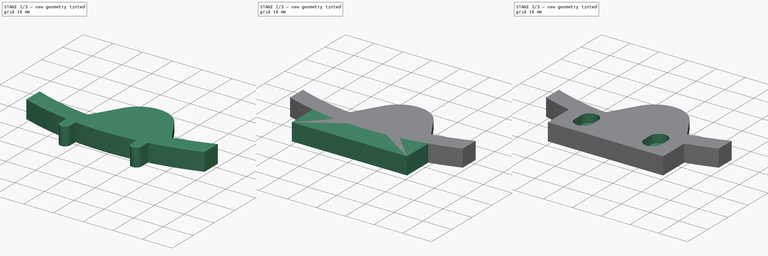
[diagram: build sequence overview — one tinted view per stage of 3, left to right]
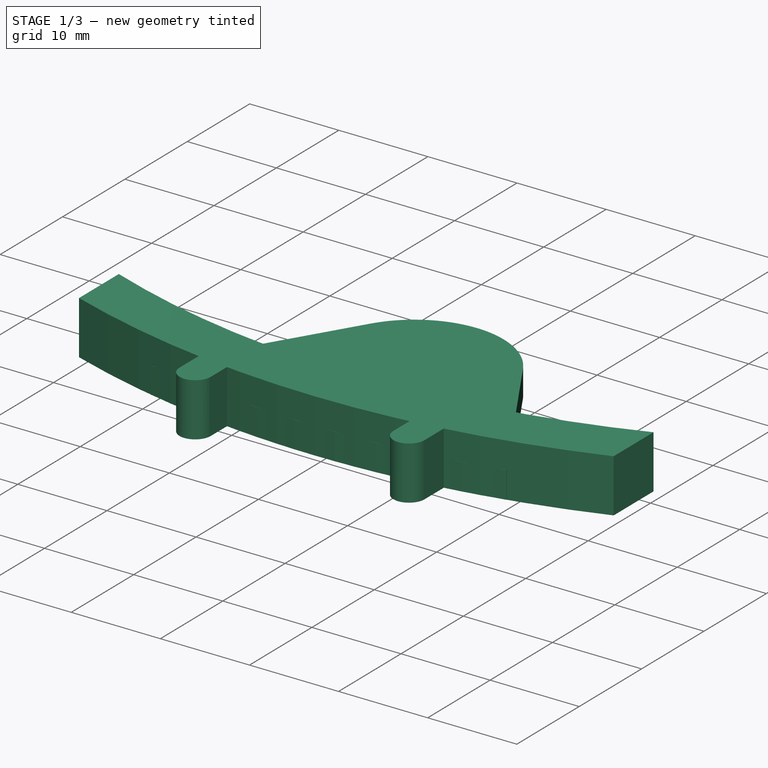
[diagram: stage 1 of 3 — iso view after this stage's code; geometry added in this stage tinted green]
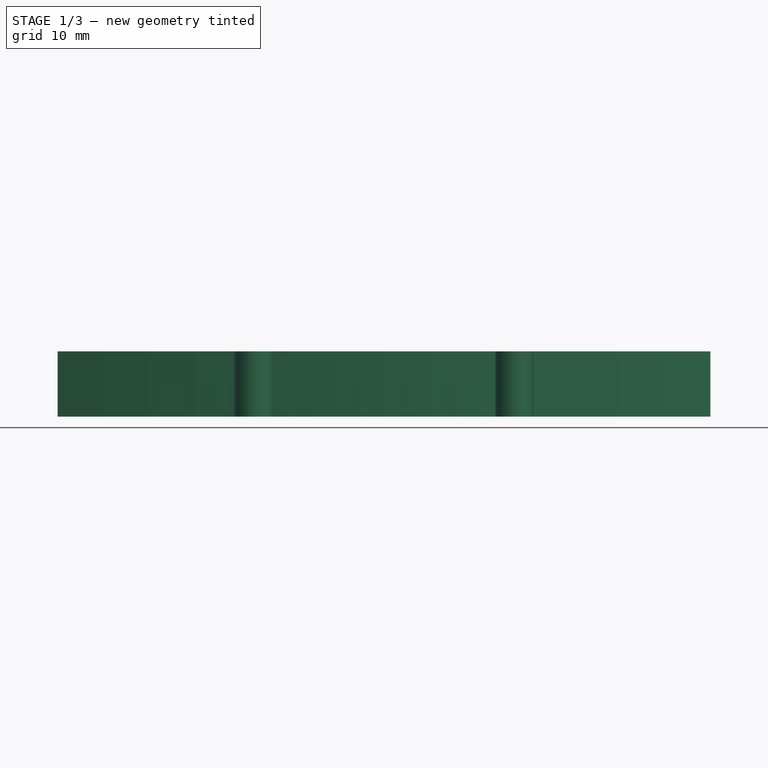
[diagram: stage 1 of 3 — front view after this stage's code; geometry added in this stage tinted green]
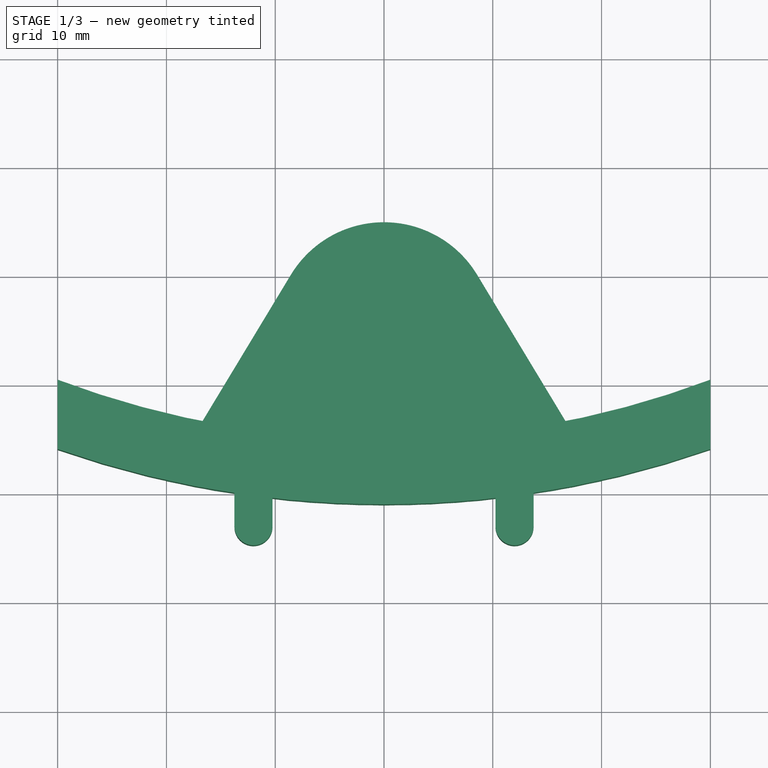
[diagram: stage 1 of 3 — top view after this stage's code; geometry added in this stage tinted green]
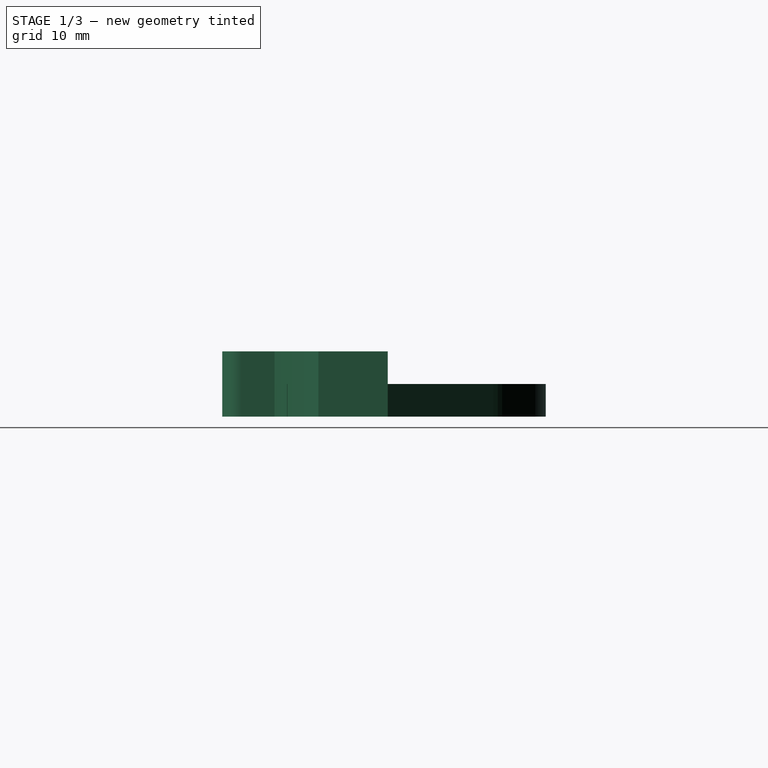
[diagram: stage 1 of 3 — right view after this stage's code; geometry added in this stage tinted green]
FCSTD DOCUMENT  (FreeCAD 0.14R2935 (Git))
Label: FSR_Mount_V1
License: CC-BY 3.0
LicenseURL: http://creativecommons.org/licenses/by/3.0/
objects: Sketcher::SketchObject×5, PartDesign::Pad×5, App::DocumentObjectGroup×2, Part::Cut×2, Part::MultiFuse×1
note: 18 computed .brp shape members not serialized (recipe doc carries the construction recipe); baked Part::Feature solids carry a one-line shape summary decoded from their .brp

FEATURE [PartDesign::Pad] Pad002  label="Frame_Pad"
  Length = 6
  Length2 = 100
  Sketch = -> Sketch002
  Type = 0
FEATURE [PartDesign::Pad] Pad003  label="Base_Pad"
  Length = 3
  Length2 = 100
  Sketch = -> Sketch001
  Type = 0
FEATURE [PartDesign::Pad] Pad  label="ThroughHole_Pad"
  Length = 6
  Length2 = 100
  Sketch = -> Sketch003
  Type = 0
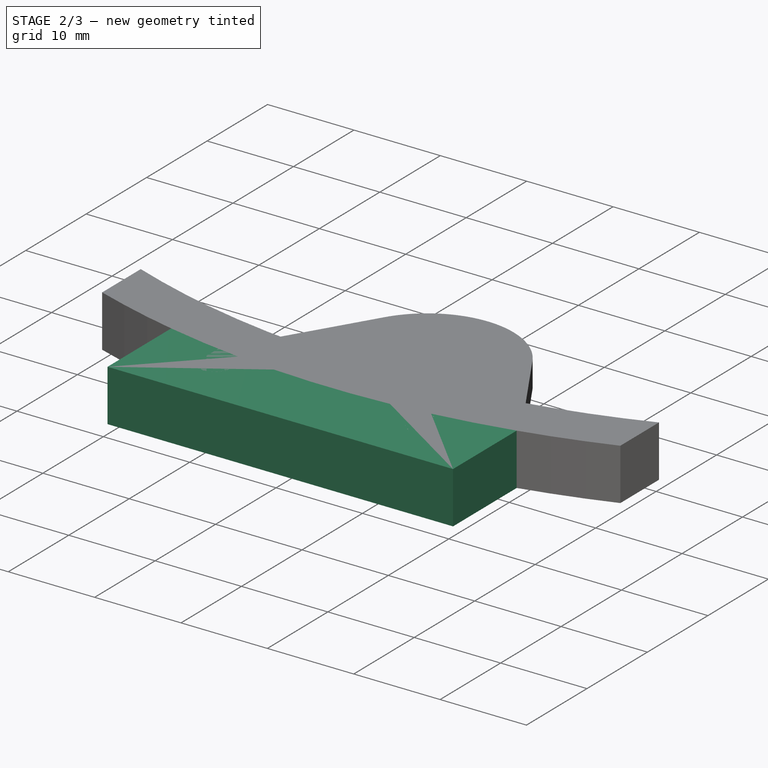
[diagram: stage 2 of 3 — iso view after this stage's code; geometry added in this stage tinted green]
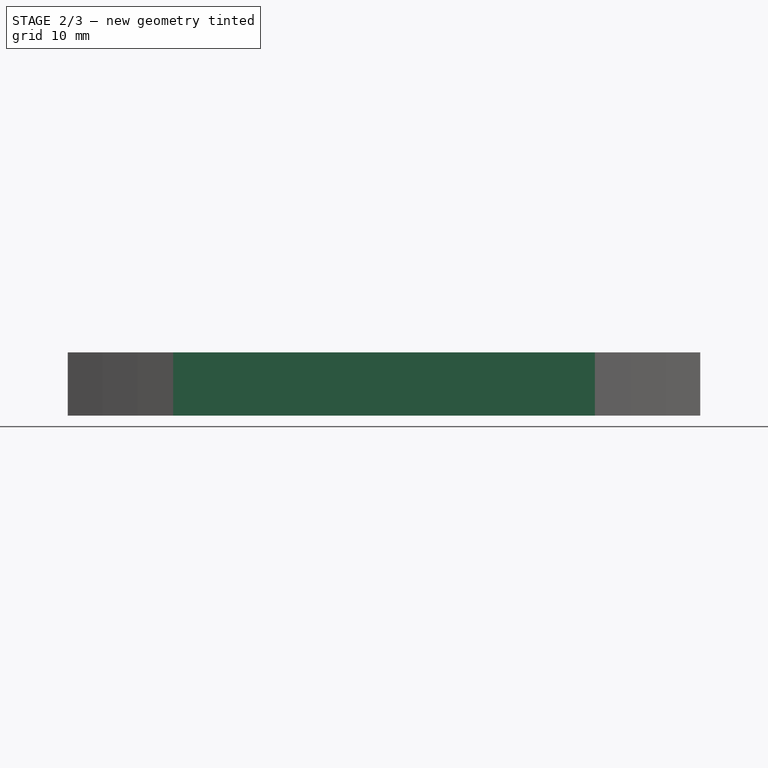
[diagram: stage 2 of 3 — front view after this stage's code; geometry added in this stage tinted green]
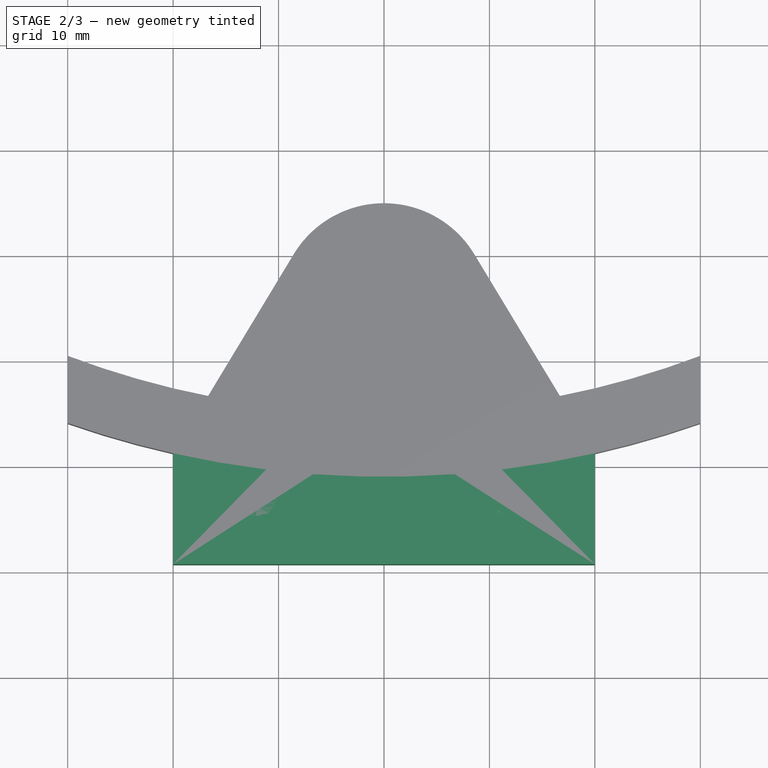
[diagram: stage 2 of 3 — top view after this stage's code; geometry added in this stage tinted green]
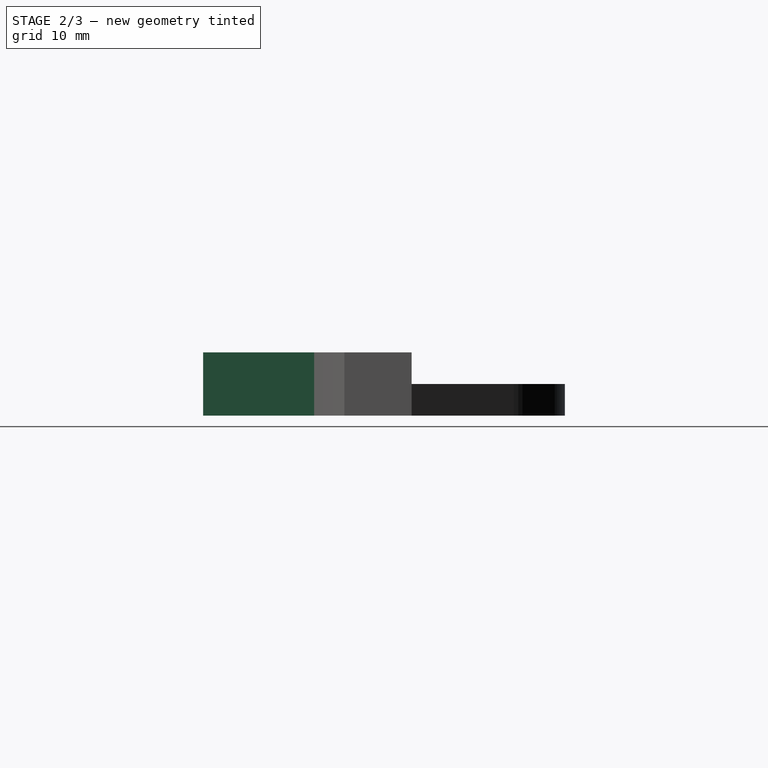
[diagram: stage 2 of 3 — right view after this stage's code; geometry added in this stage tinted green]
FEATURE [Sketcher::SketchObject] Sketch  label="Back_Sketch"
  sketch-geometry (4):
    g0: ArcOfCircle CenterX=0 CenterY=0 CenterZ=0 NormalX=0 NormalY=0 NormalZ=1 Radius=85 StartAngle=4.47487 EndAngle=4.94991
    g1: LineSegment StartX=20 StartY=-82.6136 StartZ=0 EndX=20 EndY=-99.3 EndZ=0
    g2: LineSegment StartX=20 StartY=-99.3 StartZ=0 EndX=-20 EndY=-99.3 EndZ=0
    g3: LineSegment StartX=-20 StartY=-99.3 StartZ=0 EndX=-20 EndY=-82.6136 EndZ=0
  constraints (11):
    c: Coincident(g0,g-1)
    c: Radius(g0) = 85
    c: Coincident(g1,g2)
    c: Coincident(g2,g3)
    c: Coincident(g3,g0)
    c: Coincident(g1,g0)
    c: Distance(g3) = 16.6864
    c: DistanceX(g-1,g2) = -20
    c: Symmetric(g2,g1,g-2)
    c: Perpendicular(g3,g2)
    c: Perpendicular(g1,g2)
FEATURE [Sketcher::SketchObject] Sketch001  label="Base_Sketch"
  sketch-geometry (4):
    g0: ArcOfCircle CenterX=0 CenterY=-75 CenterZ=0 NormalX=0 NormalY=0 NormalZ=1 Radius=10 StartAngle=0.543251 EndAngle=2.59834
    g1: LineSegment StartX=-20 StartY=-88.775 StartZ=0 EndX=-8.56032 EndY=-69.8308 EndZ=0
    g2: LineSegment StartX=8.56032 StartY=-69.8308 StartZ=0 EndX=20 EndY=-88.775 EndZ=0
    g3: ArcOfCircle CenterX=0 CenterY=0 CenterZ=0 NormalX=0 NormalY=0 NormalZ=1 Radius=91 StartAngle=4.4908 EndAngle=4.93398
  constraints (12):
    c: Radius(g0) = 10
    c: Symmetric(g0,g0,g-2)
    c: Coincident(g1,g0)
    c: Symmetric(g2,g1,g-2)
    c: Coincident(g2,g0)
    c: DistanceY(g-1,g0) = -75
    c: Tangent(g1,g0)
    c: Coincident(g3,g-1)
    c: Coincident(g3,g1)
    c: Coincident(g3,g2)
    c: DistanceX(g1,g2) = 40
    c: Radius(g3) = 91
FEATURE [Sketcher::SketchObject] Sketch002  label="Frame_Sketch"
  sketch-geometry (4):
    g0: ArcOfCircle CenterX=0 CenterY=0 CenterZ=0 NormalX=0 NormalY=0 NormalZ=1 Radius=85 StartAngle=4.35168 EndAngle=5.0731
    g1: ArcOfCircle CenterX=0 CenterY=0 CenterZ=0 NormalX=0 NormalY=0 NormalZ=1 Radius=91 StartAngle=4.37643 EndAngle=5.04834
    g2: LineSegment StartX=30 StartY=-79.5299 StartZ=0 EndX=30 EndY=-85.9127 EndZ=0
    g3: LineSegment StartX=-30 StartY=-85.9127 StartZ=0 EndX=-30 EndY=-79.5299 EndZ=0
  constraints (12):
    c: Coincident(g0,g-1)
    c: Coincident(g1,g-1)
    c: Radius(g0) = 85
    c: Vertical(g2)
    c: Vertical(g3)
    c: Radius(g1) = 91
    c: Coincident(g3,g0)
    c: Coincident(g2,g0)
    c: Coincident(g2,g1)
    c: Coincident(g3,g1)
    c: DistanceX(g-1,g0) = -30
    c: Symmetric(g0,g0,g-2)
FEATURE [Sketcher::SketchObject] Sketch003  label="ThroughHole_Sketch"
  sketch-geometry (8):
    g0: ArcOfCircle CenterX=-12 CenterY=-90 CenterZ=0 NormalX=0 NormalY=0 NormalZ=1 Radius=1.75 StartAngle=6.28319 EndAngle=9.42478
    g1: ArcOfCircle CenterX=-12 CenterY=-93 CenterZ=0 NormalX=0 NormalY=0 NormalZ=1 Radius=1.75 StartAngle=3.14159 EndAngle=6.28319
    g2: LineSegment StartX=-10.25 StartY=-90 StartZ=0 EndX=-10.25 EndY=-93 EndZ=0
    g3: LineSegment StartX=-13.75 StartY=-90 StartZ=0 EndX=-13.75 EndY=-93 EndZ=0
    g4: ArcOfCircle CenterX=12 CenterY=-90 CenterZ=0 NormalX=0 NormalY=0 NormalZ=1 Radius=1.75 StartAngle=6.28318 EndAngle=9.42478
    g5: ArcOfCircle CenterX=12 CenterY=-93 CenterZ=0 NormalX=0 NormalY=0 NormalZ=1 Radius=1.75 StartAngle=3.14159 EndAngle=6.28319
    g6: LineSegment StartX=10.25 StartY=-90 StartZ=0 EndX=10.25 EndY=-93 EndZ=0
    g7: LineSegment StartX=13.75 StartY=-90 StartZ=0 EndX=13.75 EndY=-93 EndZ=0
  constraints (24):
    c: Radius(g0) = 1.75
    c: DistanceX(g-1,g0) = -12
    c: DistanceY(g-1,g0) = -90
    c: Coincident(g2,g1)
    c: Coincident(g2,g0)
    c: Tangent(g2,g0)
    c: Tangent(g2,g1)
    c: Vertical(g2)
    c: Coincident(g3,g0)
    c: Coincident(g3,g1)
    c: Tangent(g3,g0)
    c: Tangent(g3,g1)
    c: Vertical(g3)
    c: DistanceY(g1,g0) = 3
    c: Symmetric(g4,g0,g-2)
    c: Symmetric(g4,g0,g-2)
    c: Symmetric(g4,g0,g-2)
    c: Symmetric(g5,g1,g-2)
    c: Symmetric(g5,g1,g-2)
    c: Symmetric(g5,g1,g-2)
    c: Coincident(g6,g4)
    c: Coincident(g6,g5)
    c: Coincident(g7,g4)
    c: Coincident(g7,g5)
FEATURE [PartDesign::Pad] Pad001  label="Back_Pad"
  Length = 6
  Length2 = 100
  Sketch = -> Sketch
  Type = 0
FEATURE [Sketcher::SketchObject] Sketch004  label="CounterboreHole_Sketch"
  Placement = pos=(0,0,3) rot=(0,0,1;0rad)
  sketch-geometry (8):
    g0: ArcOfCircle CenterX=-12 CenterY=-93 CenterZ=0 NormalX=0 NormalY=0 NormalZ=1 Radius=3 StartAngle=3.1416 EndAngle=6.28319
    g1: ArcOfCircle CenterX=-12 CenterY=-90 CenterZ=0 NormalX=0 NormalY=0 NormalZ=1 Radius=3 StartAngle=6.28319 EndAngle=9.42478
    g2: LineSegment StartX=-9 StartY=-90 StartZ=0 EndX=-9 EndY=-93 EndZ=0
    g3: LineSegment StartX=-15 StartY=-90 StartZ=0 EndX=-15 EndY=-93 EndZ=0
    g4: ArcOfCircle CenterX=12 CenterY=-90 CenterZ=0 NormalX=0 NormalY=0 NormalZ=1 Radius=3 StartAngle=6.28319 EndAngle=9.42478
    g5: ArcOfCircle CenterX=12 CenterY=-93 CenterZ=0 NormalX=0 NormalY=0 NormalZ=1 Radius=3 StartAngle=3.14159 EndAngle=6.28318
    g6: LineSegment StartX=9 StartY=-90 StartZ=0 EndX=9 EndY=-93 EndZ=0
    g7: LineSegment StartX=15 StartY=-90 StartZ=0 EndX=15 EndY=-93 EndZ=0
  constraints (24):
    c: DistanceX(g-1,g1) = -12
    c: DistanceY(g-1,g1) = -90
    c: DistanceY(g0,g1) = 3
    c: Radius(g1) = 3
    c: Coincident(g2,g0)
    c: Coincident(g1,g2)
    c: Tangent(g2,g1)
    c: Tangent(g2,g0)
    c: Coincident(g3,g1)
    c: Coincident(g3,g0)
    c: Tangent(g3,g1)
    c: Tangent(g3,g0)
    c: Vertical(g3)
    c: Vertical(g2)
    c: Symmetric(g4,g1,g-2)
    c: Symmetric(g4,g1,g-2)
    c: Symmetric(g1,g4,g-2)
    c: Symmetric(g5,g0,g-2)
    c: Symmetric(g5,g0,g-2)
    c: Coincident(g6,g4)
    c: Coincident(g6,g5)
    c: Coincident(g7,g4)
    c: Coincident(g7,g5)
    c: Symmetric(g0,g5,g-2)
FEATURE [App::DocumentObjectGroup] Group  label="Solids"
  Group = -> [Pad001,Pad002,Pad003]
FEATURE [Part::MultiFuse] Fusion  label="Solids_Fusion"
  Shapes = -> [Pad001,Pad002,Pad003]
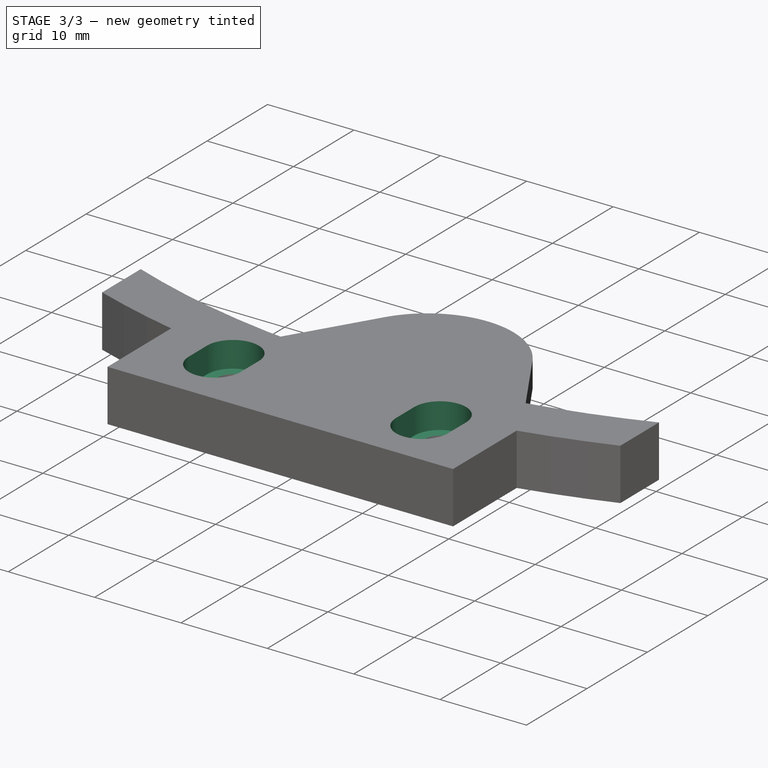
[diagram: stage 3 of 3 — iso view after this stage's code; geometry added in this stage tinted green]
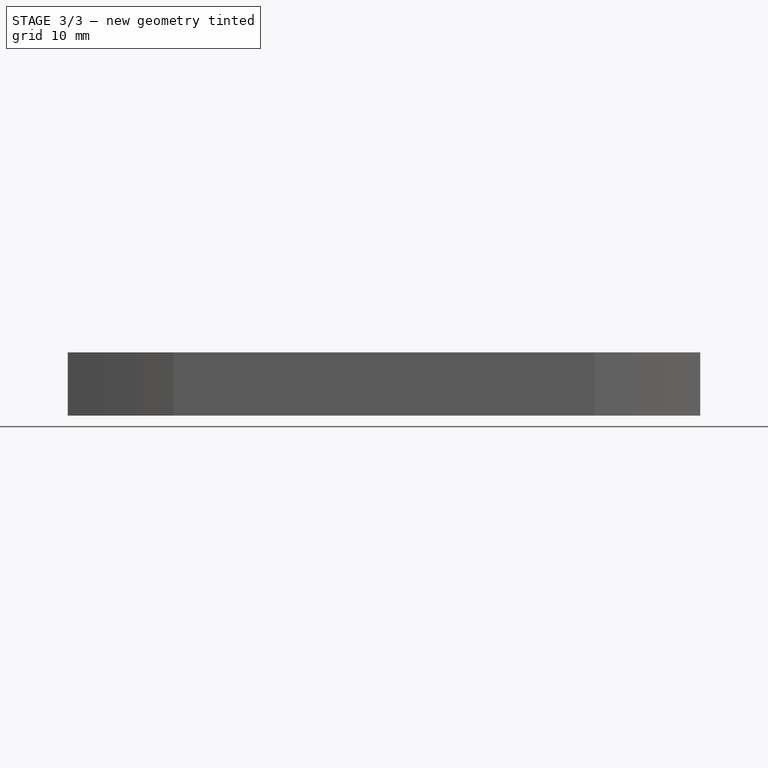
[diagram: stage 3 of 3 — front view after this stage's code; geometry added in this stage tinted green]
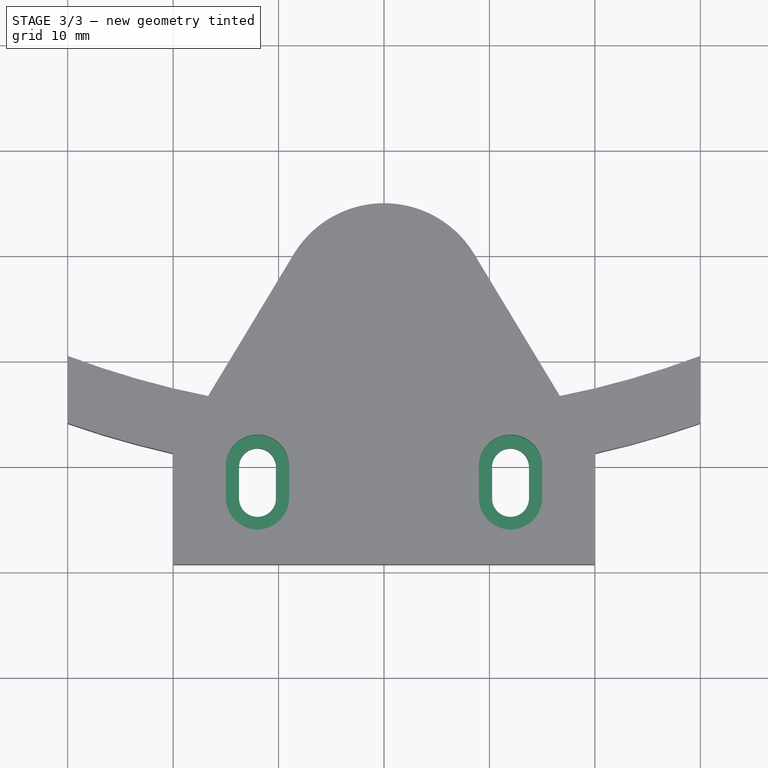
[diagram: stage 3 of 3 — top view after this stage's code; geometry added in this stage tinted green]
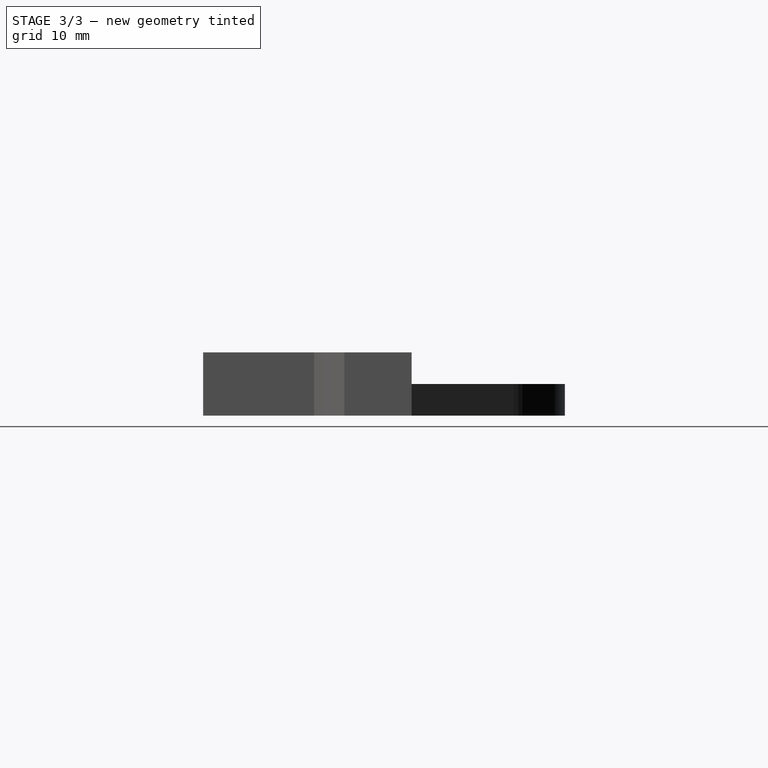
[diagram: stage 3 of 3 — right view after this stage's code; geometry added in this stage tinted green]
FEATURE [PartDesign::Pad] Pad004  label="CounterboreHole_Pad"
  Length = 3
  Length2 = 100
  Placement = pos=(0,0,3) rot=(0,0,1;0rad)
  Sketch = -> Sketch004
  Type = 0
FEATURE [App::DocumentObjectGroup] Group001  label="Holes"
  Group = -> [Pad,Pad004]
FEATURE [Part::Cut] Cut  label="ThroughHole_Cut"
  Base = -> Fusion
  Tool = -> Pad
FEATURE [Part::Cut] Cut001  label="CounterboreHole_Cut"
  Base = -> Cut
  Tool = -> Pad004
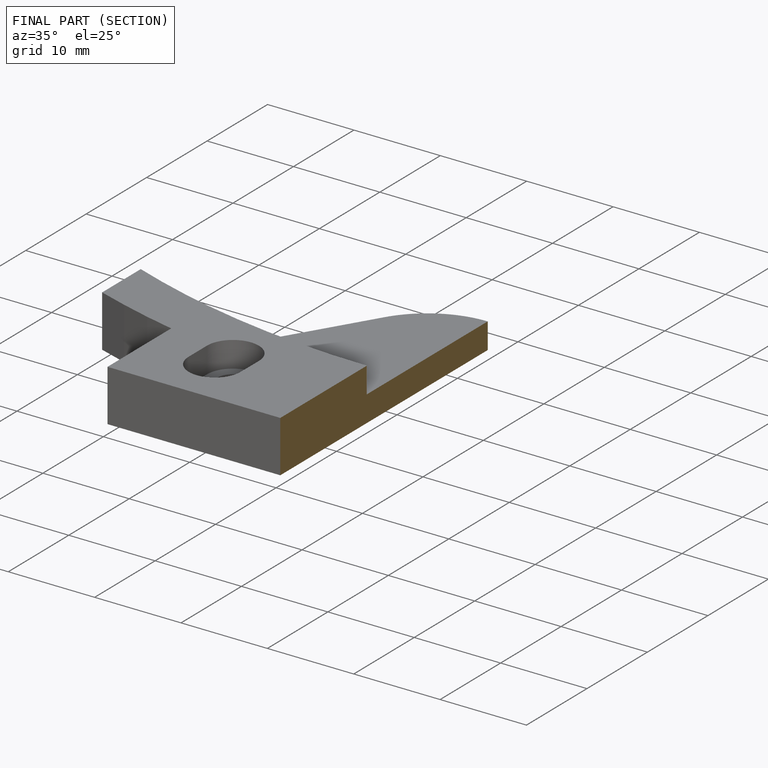
[diagram: finished part — half-section view (interior)]
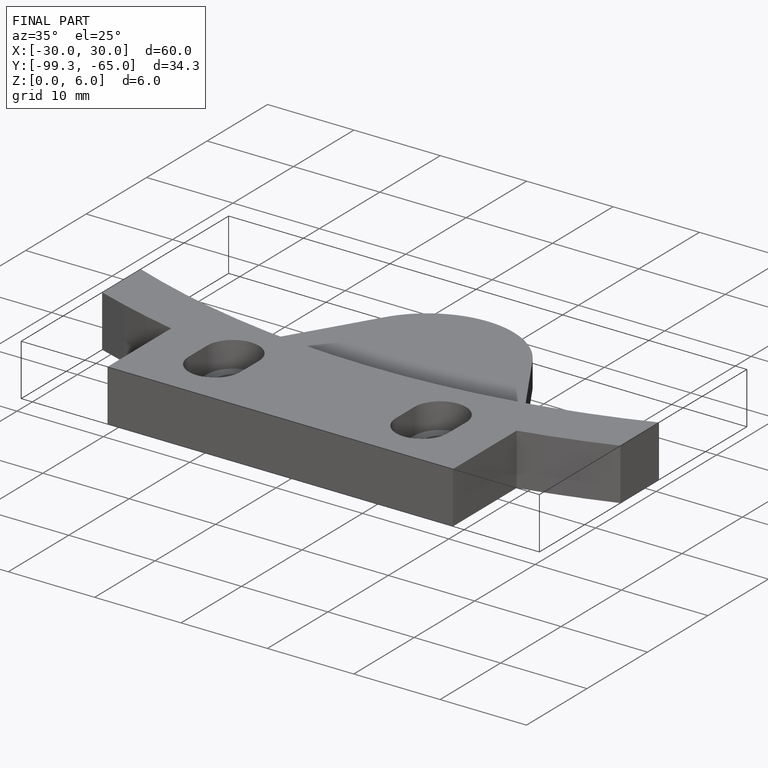
[diagram: finished part — iso view with bounding-box wireframe]
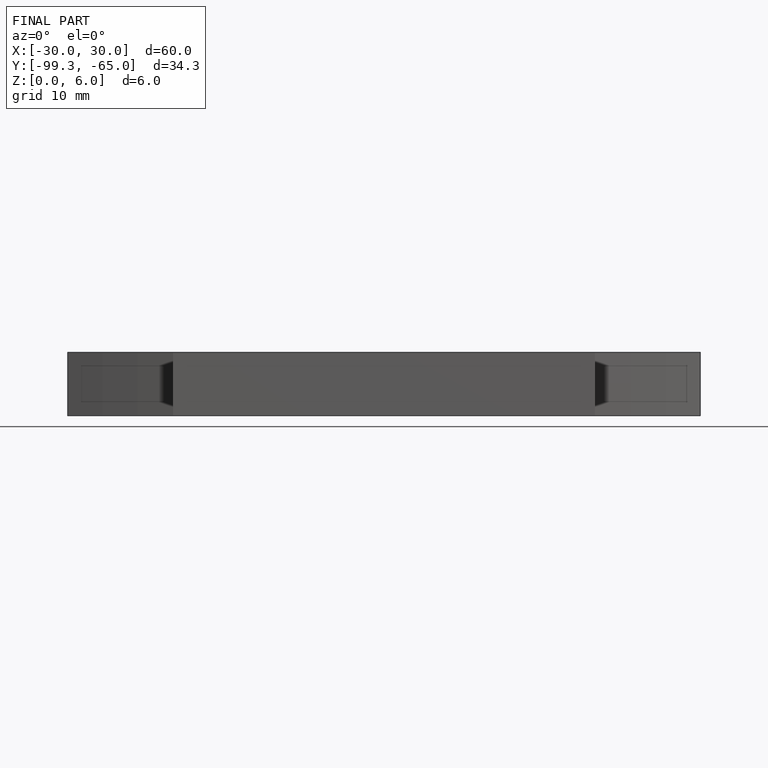
[diagram: finished part — front view with bounding-box wireframe]
